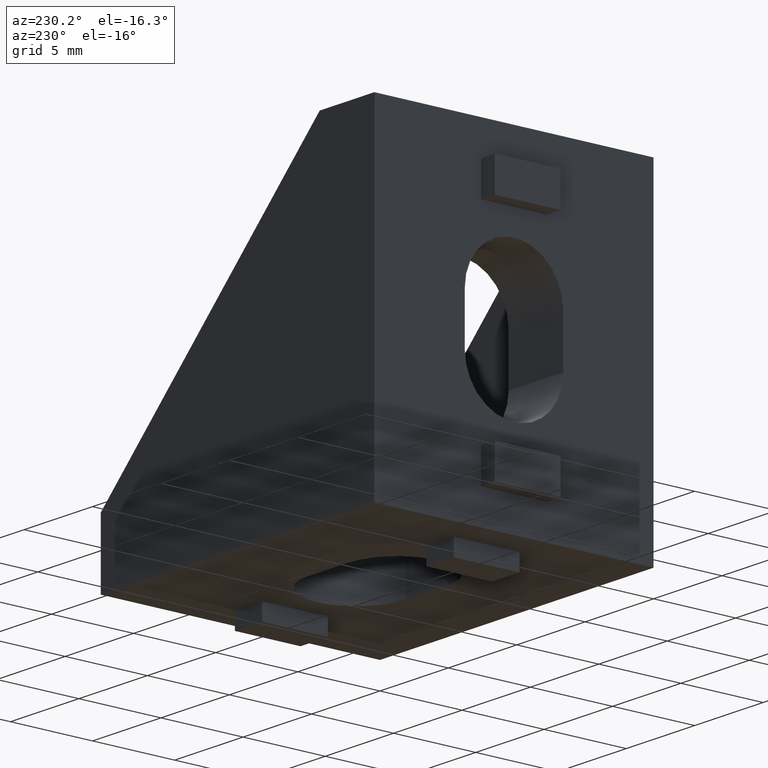
[diagram: clean part render]
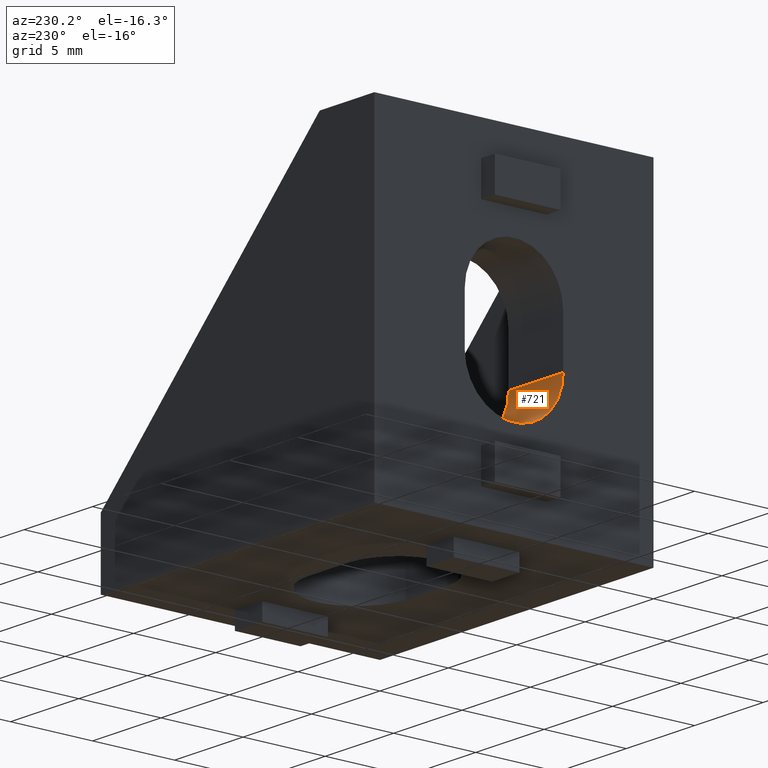
[diagram: same view with one face highlighted and labeled with its STEP entity id]
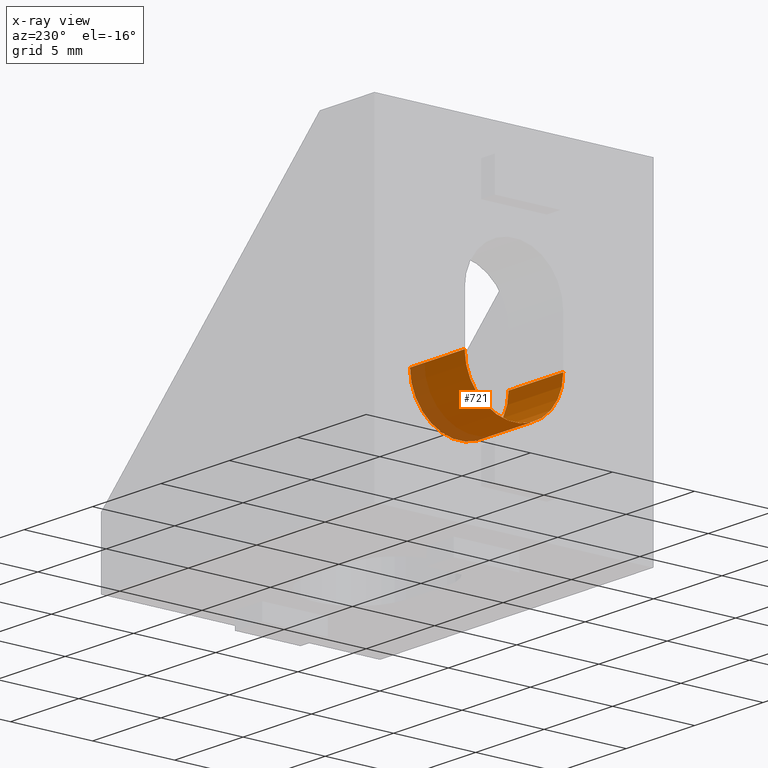
[diagram: x-ray of the same camera — body ghosted, the highlighted face saturated]
A machine part, auxiliary view. The second image highlights one B-rep face of the part: STEP entity #721.
The next image is the same camera in x-ray: the body ghosted, the highlighted face saturated — about 19% of this face is hidden behind the body in this view.
In plain terms, the highlighted cylindrical surface (partial cylindrical patch) has radius 3 mm, axis along (1, 0, 0).
Its self-contained STEP definition (entity closure, byte-faithful):
#27=CIRCLE('',#780,3.);
#28=CIRCLE('',#781,3.);
#33=CYLINDRICAL_SURFACE('',#779,3.);
#59=FACE_OUTER_BOUND('',#99,.T.);
#99=EDGE_LOOP('',(#561,#562,#563,#564));
#179=LINE('',#1117,#269);
#180=LINE('',#1120,#270);
#269=VECTOR('',#917,10.);
#270=VECTOR('',#920,10.);
#343=VERTEX_POINT('',#1113);
#344=VERTEX_POINT('',#1114);
#345=VERTEX_POINT('',#1116);
#346=VERTEX_POINT('',#1118);
#427=EDGE_CURVE('',#343,#344,#27,.T.);
#428=EDGE_CURVE('',#343,#345,#179,.T.);
#429=EDGE_CURVE('',#346,#345,#28,.T.);
#430=EDGE_CURVE('',#344,#346,#180,.T.);
#561=ORIENTED_EDGE('',*,*,#427,.F.);
#562=ORIENTED_EDGE('',*,*,#428,.T.);
#563=ORIENTED_EDGE('',*,*,#429,.F.);
#564=ORIENTED_EDGE('',*,*,#430,.F.);
#721=ADVANCED_FACE('',(#59),#33,.F.);
#779=AXIS2_PLACEMENT_3D('',#1112,#913,#914);
#780=AXIS2_PLACEMENT_3D('',#1115,#915,#916);
#781=AXIS2_PLACEMENT_3D('',#1119,#918,#919);
#913=DIRECTION('center_axis',(1.,0.,0.));
#914=DIRECTION('ref_axis',(0.,1.,0.));
#915=DIRECTION('center_axis',(1.,0.,0.));
#916=DIRECTION('ref_axis',(0.,1.,0.));
#917=DIRECTION('',(1.,0.,0.));
#918=DIRECTION('center_axis',(-1.,0.,0.));
#919=DIRECTION('ref_axis',(0.,1.,0.));
#920=DIRECTION('',(1.,0.,0.));
#1112=CARTESIAN_POINT('Origin',(0.,8.5,8.5));
#1113=CARTESIAN_POINT('',(0.,5.5,8.5));
#1114=CARTESIAN_POINT('',(0.,11.5,8.5));
#1115=CARTESIAN_POINT('Origin',(0.,8.5,8.5));
#1116=CARTESIAN_POINT('',(4.,5.5,8.5));
#1117=CARTESIAN_POINT('',(0.,5.5,8.5));
#1118=CARTESIAN_POINT('',(4.,11.5,8.5));
#1119=CARTESIAN_POINT('Origin',(4.,8.5,8.5));
#1120=CARTESIAN_POINT('',(0.,11.5,8.5));